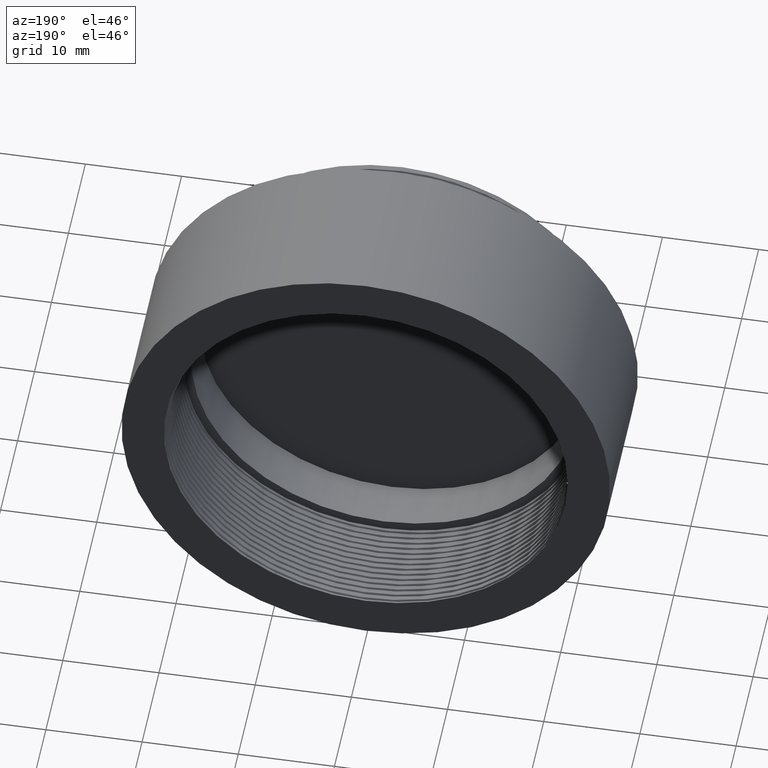
[diagram: clean part render]
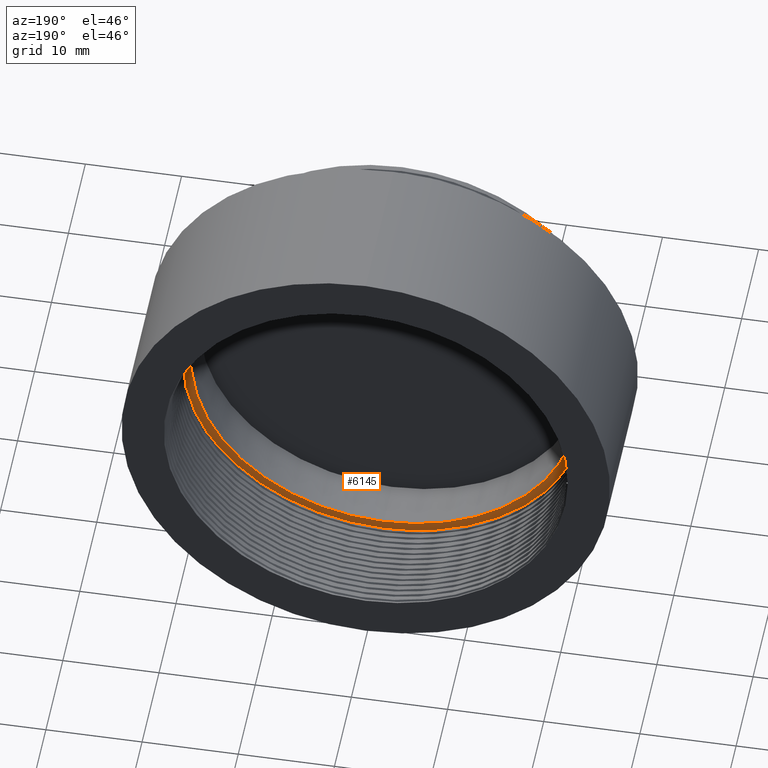
[diagram: same view with one face highlighted and labeled with its STEP entity id]
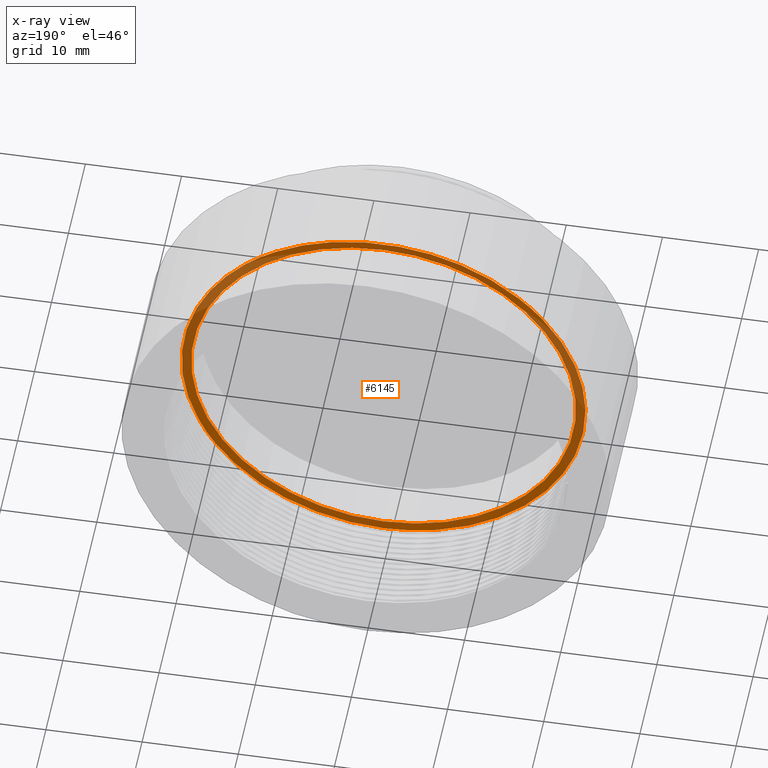
[diagram: x-ray of the same camera — body ghosted, the highlighted face saturated]
A machine part, auxiliary view. The second image highlights one B-rep face of the part: STEP entity #6145.
The next image is the same camera in x-ray: the body ghosted, the highlighted face saturated — about 34% of this face is hidden behind the body in this view.
In plain terms, the highlighted planar face has unit normal (0, 1, 0).
Its self-contained STEP definition (entity closure, byte-faithful):
#20 = CARTESIAN_POINT ( 'NONE',  ( -9.376612551712481647, 11.00000000000000000, -18.84141831381162291 ) ) ;
#89 = AXIS2_PLACEMENT_3D ( 'NONE', #3897, #1185, #1086 ) ;
#92 = CARTESIAN_POINT ( 'NONE',  ( -20.38579456893963027, 10.99999999999999822, -5.228698386210409943 ) ) ;
#141 = ORIENTED_EDGE ( 'NONE', *, *, #3516, .T. ) ;
#160 = CARTESIAN_POINT ( 'NONE',  ( -20.99832269904928950, 11.00070836982192901, 0.2658145037446087988 ) ) ;
#199 = CARTESIAN_POINT ( 'NONE',  ( 6.192182404824472464, 10.99999999999999467, 19.98000702472917212 ) ) ;
#447 = B_SPLINE_CURVE_WITH_KNOTS ( 'NONE', 3,
 ( #1478, #3658, #5842, #2048 ),
 .UNSPECIFIED., .F., .F.,
 ( 4, 4 ),
 ( 0.000000000000000000, 1.684665365120567622E-05 ),
 .UNSPECIFIED. ) ;
#479 = CARTESIAN_POINT ( 'NONE',  ( 20.76729372760701509, 10.99999999999999822, -3.752007884004494365 ) ) ;
#545 = AXIS2_PLACEMENT_3D ( 'NONE', #2359, #6654, #4506 ) ;
#555 = CARTESIAN_POINT ( 'NONE',  ( 3.394852015363649222, 11.00000000000000000, 20.61105757466285127 ) ) ;
#607 = CARTESIAN_POINT ( 'NONE',  ( -20.99832269904928950, 11.00070836982192901, 0.2658145037446087988 ) ) ;
#621 = CARTESIAN_POINT ( 'NONE',  ( -6.819739058362572770, 11.00000000000000178, -19.91007448998652407 ) ) ;
#656 = CARTESIAN_POINT ( 'NONE',  ( -1.385607094730699540, 11.00000000000000000, -20.99999999999999645 ) ) ;
#696 = CARTESIAN_POINT ( 'NONE',  ( -19.36648384478871066, 10.99999999999999645, 7.942265705567438161 ) ) ;
#728 = CARTESIAN_POINT ( 'NONE',  ( -16.47302115723470450, 11.00000000000000533, 12.82128820089616994 ) ) ;
#767 = CARTESIAN_POINT ( 'NONE',  ( -10.31634094374765631, 10.99999999999999467, 18.13012216713388725 ) ) ;
#867 = CARTESIAN_POINT ( 'NONE',  ( 0.000000000000000000, 11.00000000000000000, -21.00000000000000000 ) ) ;
#869 = CARTESIAN_POINT ( 'NONE',  ( -1.613268840247533253, 11.00000000000000000, 20.76557526982477242 ) ) ;
#1086 = DIRECTION ( 'NONE',  ( 0.000000000000000000, 0.000000000000000000, -1.000000000000000000 ) ) ;
#1146 = CARTESIAN_POINT ( 'NONE',  ( -19.99543596717254701, 11.00000000000000000, -6.565245426004308271 ) ) ;
#1179 = CARTESIAN_POINT ( 'NONE',  ( -21.01596431327338621, 10.99999999999999822, -1.117654241788260894 ) ) ;
#1185 = DIRECTION ( 'NONE',  ( -0.000000000000000000, -1.000000000000000000, -0.000000000000000000 ) ) ;
#1257 = CARTESIAN_POINT ( 'NONE',  ( -19.63465510455311858, 10.99999999999999822, 7.274993625966185817 ) ) ;
#1261 = EDGE_LOOP ( 'NONE', ( #1738, #6199, #1571, #141, #3054, #5595, #5036 ) ) ;
#1330 = CARTESIAN_POINT ( 'NONE',  ( -17.73983588307692116, 11.00000000000000533, 11.11007280043288681 ) ) ;
#1399 = CARTESIAN_POINT ( 'NONE',  ( 20.00000000000000000, 11.00000000000000000, 0.000000000000000000 ) ) ;
#1400 = CARTESIAN_POINT ( 'NONE',  ( -6.114496230715467107, 11.00000000000000178, 19.94345230860073315 ) ) ;
#1458 = CARTESIAN_POINT ( 'NONE',  ( 12.01932767772037991, 10.99999999999999822, 17.24386398497079043 ) ) ;
#1478 = CARTESIAN_POINT ( 'NONE',  ( 14.40284748030011563, 11.00001991105595955, 15.28262937648084296 ) ) ;
#1569 = CARTESIAN_POINT ( 'NONE',  ( 4.174915481830221431, 11.00000000000000000, -20.68642387291510687 ) ) ;
#1571 = ORIENTED_EDGE ( 'NONE', *, *, #5967, .T. ) ;
#1641 = CARTESIAN_POINT ( 'NONE',  ( -20.89606525793205094, 11.00000000000000178, -2.504868011934628047 ) ) ;
#1738 = ORIENTED_EDGE ( 'NONE', *, *, #3168, .F. ) ;
#1754 = CARTESIAN_POINT ( 'NONE',  ( -20.99832269904928950, 11.00070836982192901, 0.2658145037446087988 ) ) ;
#1784 = CARTESIAN_POINT ( 'NONE',  ( -18.31390474791255585, 11.00000000000000000, -10.36922368865452171 ) ) ;
#1789 = CARTESIAN_POINT ( 'NONE',  ( 14.40284748030011563, 11.00001991105595955, 15.28262937648084296 ) ) ;
#1905 = EDGE_LOOP ( 'NONE', ( #5095, #4046 ) ) ;
#1930 = CARTESIAN_POINT ( 'NONE',  ( -13.15658767194770995, 10.99999999999999645, 16.18744712874730496 ) ) ;
#2038 = FACE_BOUND ( 'NONE', #1905, .T. ) ;
#2048 = CARTESIAN_POINT ( 'NONE',  ( 14.39058597849862942, 10.99999604192153768, 15.29418325506679999 ) ) ;
#2070 = CARTESIAN_POINT ( 'NONE',  ( 20.04771357964002831, 11.00000000000000000, 6.591451445550842614 ) ) ;
#2116 = CARTESIAN_POINT ( 'NONE',  ( 14.24628486455015164, 11.00000000000000000, 15.42871583336450136 ) ) ;
#2137 = CARTESIAN_POINT ( 'NONE',  ( 15.07388673445577609, 11.00000000000000178, -14.76942756667081902 ) ) ;
#2170 = CARTESIAN_POINT ( 'NONE',  ( 20.28861758745346577, 11.00000000000000000, -5.807757598282807798 ) ) ;
#2180 = CARTESIAN_POINT ( 'NONE',  ( 4.104392977379085039, 11.00000000000000178, 20.48886645474529544 ) ) ;
#2235 = VERTEX_POINT ( 'NONE', #6120 ) ;
#2286 = CARTESIAN_POINT ( 'NONE',  ( -15.05293926870275811, 10.99999999999999822, 14.43265228422139224 ) ) ;
#2355 = CARTESIAN_POINT ( 'NONE',  ( 10.16245483518208026, 11.00000000000000000, 18.33280125925375259 ) ) ;
#2359 = CARTESIAN_POINT ( 'NONE',  ( 0.000000000000000000, 11.00000000000000000, 0.000000000000000000 ) ) ;
#2424 = CARTESIAN_POINT ( 'NONE',  ( 7.552805944567641205, 10.99999999999999467, 19.52196328696531324 ) ) ;
#2708 = CARTESIAN_POINT ( 'NONE',  ( 13.52312009790266600, 11.00000000000000000, -16.20133558531637519 ) ) ;
#2747 = CARTESIAN_POINT ( 'NONE',  ( -15.91714213487358620, 11.00000000000000000, -13.76824220004863619 ) ) ;
#2769 = EDGE_CURVE ( 'NONE', #6434, #6272, #447, .T. ) ;
#2825 = CARTESIAN_POINT ( 'NONE',  ( -18.46437755852599594, 10.99999999999999645, 9.891083325738192045 ) ) ;
#2858 = CARTESIAN_POINT ( 'NONE',  ( -14.54221375337176170, 11.00000000000000000, 14.93781033204386688 ) ) ;
#2954 =( BOUNDED_CURVE ( )  B_SPLINE_CURVE ( 2, ( #5448, #4395, #2116 ),
 .UNSPECIFIED., .F., .T. ) 
 B_SPLINE_CURVE_WITH_KNOTS ( ( 3, 3 ),
 ( 0.000000000000000000, 1.000000000000000000 ),
 .UNSPECIFIED. ) 
 CURVE ( )  GEOMETRIC_REPRESENTATION_ITEM ( )  RATIONAL_B_SPLINE_CURVE ( ( 0.9941606006061280976, 0.9933283622851699635, 0.9925176200128658088 ) ) 
 REPRESENTATION_ITEM ( '' )  );
#3005 = DIRECTION ( 'NONE',  ( 0.000000000000000000, 1.000000000000000000, 0.000000000000000000 ) ) ;
#3007 = CARTESIAN_POINT ( 'NONE',  ( -14.00612627953709932, 10.99999999999999822, 15.41558235290940537 ) ) ;
#3054 = ORIENTED_EDGE ( 'NONE', *, *, #6274, .F. ) ;
#3144 = CARTESIAN_POINT ( 'NONE',  ( 2.087594771582240938, 11.00000000000000355, -21.00000000000000000 ) ) ;
#3168 = EDGE_CURVE ( 'NONE', #3842, #6236, #4195, .T. ) ;
#3284 = CARTESIAN_POINT ( 'NONE',  ( 15.92206857099474249, 11.00000000000000000, 13.85084056477725234 ) ) ;
#3469 = CARTESIAN_POINT ( 'NONE',  ( -14.00612627953709932, 10.99999999999999822, 15.41558235290940537 ) ) ;
#3516 = EDGE_CURVE ( 'NONE', #5070, #5306, #5915, .T. ) ;
#3539 = FACE_OUTER_BOUND ( 'NONE', #1261, .T. ) ;
#3575 = CARTESIAN_POINT ( 'NONE',  ( -3.886754311612392598, 11.00000000000000000, 20.49442595102453524 ) ) ;
#3620 = B_SPLINE_CURVE_WITH_KNOTS ( 'NONE', 3,
 ( #1754, #3930, #3896, #4472, #5621, #1257, #696, #2825, #1330, #728, #5690, #2286, #2858, #3469 ),
 .UNSPECIFIED., .F., .F.,
 ( 4, 2, 2, 2, 2, 2, 4 ),
 ( 0.0002678161214734781255, 0.004575840829377345736, 0.006729853183329279759, 0.008883865537281212046, 0.01319189024518507836, 0.01534590259913700717, 0.01749991495308894293 ),
 .UNSPECIFIED. ) ;
#3658 = CARTESIAN_POINT ( 'NONE',  ( 14.39878792846167954, 11.00000000000000000, 15.28651050415860979 ) ) ;
#3678 = CARTESIAN_POINT ( 'NONE',  ( 8.165806740627470361, 11.00000000000000000, -19.45964162581265100 ) ) ;
#3817 = CARTESIAN_POINT ( 'NONE',  ( -5.488279480270566779, 11.00000000000000000, -20.31744805253379127 ) ) ;
#3842 = VERTEX_POINT ( 'NONE', #607 ) ;
#3853 = CARTESIAN_POINT ( 'NONE',  ( -13.97013419206014717, 11.00000000000000178, -15.74024325341892272 ) ) ;
#3896 = CARTESIAN_POINT ( 'NONE',  ( -20.78396000848695380, 10.99999999999999645, 3.134526554425440814 ) ) ;
#3897 = CARTESIAN_POINT ( 'NONE',  ( 0.000000000000000000, 11.00000000000000000, 0.000000000000000000 ) ) ;
#3930 = CARTESIAN_POINT ( 'NONE',  ( -20.96399923641366314, 11.00000000000000178, 1.703454236785207909 ) ) ;
#3999 = CARTESIAN_POINT ( 'NONE',  ( 9.524156918441262221, 11.00000000000000711, 18.66418720205083304 ) ) ;
#4046 = ORIENTED_EDGE ( 'NONE', *, *, #6405, .T. ) ;
#4063 = B_SPLINE_CURVE_WITH_KNOTS ( 'NONE', 3,
 ( #6829, #1930, #5160, #767, #6792, #4109, #1400, #3575, #5762, #869 ),
 .UNSPECIFIED., .F., .F.,
 ( 4, 2, 2, 2, 4 ),
 ( 0.000000000000000000, 0.003443435419747900399, 0.006886870839495800797, 0.01033030625924370553, 0.01377374167899160853 ),
 .UNSPECIFIED. ) ;
#4109 = CARTESIAN_POINT ( 'NONE',  ( -7.199303493054311609, 10.99999999999999822, 19.57801150136263502 ) ) ;
#4182 = CARTESIAN_POINT ( 'NONE',  ( 14.39058597849862942, 10.99999604192153768, 15.29418325506679999 ) ) ;
#4195 = B_SPLINE_CURVE_WITH_KNOTS ( 'NONE', 3,
 ( #160, #1179, #1641, #92, #1146, #6681, #1784, #6542, #2747, #3853, #6039, #5507, #20, #621, #3817, #6007, #656, #4429 ),
 .UNSPECIFIED., .F., .F.,
 ( 4, 2, 2, 2, 2, 2, 2, 2, 4 ),
 ( 0.7479700362176113781, 0.7794737816904099281, 0.8109775271632084781, 0.8424812726360071391, 0.8739850181088056891, 0.9054887635816042391, 0.9369925090544029000, 0.9684962545272014500, 1.000000000000000000 ),
 .UNSPECIFIED. ) ;
#4216 = PLANE ( 'NONE',  #6004 ) ;
#4314 = CARTESIAN_POINT ( 'NONE',  ( 18.74815826540139696, 11.00000000000000000, -9.688375177799365190 ) ) ;
#4348 = CARTESIAN_POINT ( 'NONE',  ( 21.09952604286482725, 11.00000000000000178, 0.4099423091199344560 ) ) ;
#4395 = CARTESIAN_POINT ( 'NONE',  ( 14.31688644162604973, 10.99942088953080876, 15.36346329701057556 ) ) ;
#4429 = CARTESIAN_POINT ( 'NONE',  ( 0.000000000000000000, 11.00000000000000000, -21.00000000000000000 ) ) ;
#4462 = B_SPLINE_CURVE_WITH_KNOTS ( 'NONE', 3,
 ( #4825, #3144, #1569, #3678, #4896, #2708, #2137, #6931, #4314, #2170, #479, #4348, #6969, #2070, #7035, #7003, #3284, #5938 ),
 .UNSPECIFIED., .F., .F.,
 ( 4, 2, 2, 2, 2, 2, 2, 2, 4 ),
 ( 0.000000000000000000, 0.04746443243858705641, 0.09492886487717414057, 0.1423932973157611970, 0.1898577297543483089, 0.2373221621929354763, 0.2847865946315225605, 0.3322510270701097279, 0.3797154595086968953 ),
 .UNSPECIFIED. ) ;
#4472 = CARTESIAN_POINT ( 'NONE',  ( -20.29767296973525603, 10.99999999999999822, 5.230692291209580347 ) ) ;
#4503 = CARTESIAN_POINT ( 'NONE',  ( 14.24628486455015164, 11.00000000000000000, 15.42871583336450136 ) ) ;
#4506 = DIRECTION ( 'NONE',  ( 0.000000000000000000, 0.000000000000000000, -1.000000000000000000 ) ) ;
#4612 = VERTEX_POINT ( 'NONE', #6560 ) ;
#4645 = CIRCLE ( 'NONE', #545, 20.00000000000000000 ) ;
#4825 = CARTESIAN_POINT ( 'NONE',  ( 0.000000000000000000, 11.00000000000000000, -21.00000000000000000 ) ) ;
#4896 = CARTESIAN_POINT ( 'NONE',  ( 10.06885336135407627, 11.00000000000000000, -18.54659655888072223 ) ) ;
#5015 = CARTESIAN_POINT ( 'NONE',  ( -1.613268840247533253, 11.00000000000000000, 20.76557526982477242 ) ) ;
#5036 = ORIENTED_EDGE ( 'NONE', *, *, #5096, .F. ) ;
#5070 = VERTEX_POINT ( 'NONE', #6400 ) ;
#5095 = ORIENTED_EDGE ( 'NONE', *, *, #5743, .T. ) ;
#5096 = EDGE_CURVE ( 'NONE', #6236, #6434, #4462, .T. ) ;
#5153 = CARTESIAN_POINT ( 'NONE',  ( 5.502481014232166956, 10.99999999999999822, 20.17331616469580169 ) ) ;
#5160 = CARTESIAN_POINT ( 'NONE',  ( -12.24536653426703126, 10.99999999999999645, 16.88725018184716120 ) ) ;
#5193 = DIRECTION ( 'NONE',  ( 0.000000000000000000, -0.000000000000000000, 1.000000000000000000 ) ) ;
#5306 = VERTEX_POINT ( 'NONE', #5570 ) ;
#5438 = CIRCLE ( 'NONE', #89, 20.00000000000000000 ) ;
#5443 = CARTESIAN_POINT ( 'NONE',  ( 1.260910388894639134, 11.00000000000000355, 20.86648301610033585 ) ) ;
#5448 = CARTESIAN_POINT ( 'NONE',  ( 14.39058597849862942, 10.99999604192153768, 15.29418325506679999 ) ) ;
#5507 = CARTESIAN_POINT ( 'NONE',  ( -10.60196116657311016, 11.00000000000000178, -18.18016299276339964 ) ) ;
#5570 = CARTESIAN_POINT ( 'NONE',  ( 14.24628486455015164, 11.00000000000000000, 15.42871583336450136 ) ) ;
#5595 = ORIENTED_EDGE ( 'NONE', *, *, #2769, .F. ) ;
#5621 = CARTESIAN_POINT ( 'NONE',  ( -20.09953791030565995, 10.99999999999999645, 5.921113250356113689 ) ) ;
#5690 = CARTESIAN_POINT ( 'NONE',  ( -16.02051710516896321, 11.00000000000000000, 13.37199731747878317 ) ) ;
#5743 = EDGE_CURVE ( 'NONE', #2235, #4612, #5438, .T. ) ;
#5762 = CARTESIAN_POINT ( 'NONE',  ( -2.757640651617359939, 11.00000000000000533, 20.67666950338432486 ) ) ;
#5842 = CARTESIAN_POINT ( 'NONE',  ( 14.39466352191652199, 11.00000000000000178, 15.29032150092358577 ) ) ;
#5883 = VERTEX_POINT ( 'NONE', #3007 ) ;
#5915 = B_SPLINE_CURVE_WITH_KNOTS ( 'NONE', 3,
 ( #5015, #7049, #5443, #555, #2180, #5153, #199, #2424, #6785, #3999, #2355, #1458, #6222, #4503 ),
 .UNSPECIFIED., .F., .F.,
 ( 4, 2, 2, 2, 2, 2, 4 ),
 ( 0.000000000000000000, 0.004311036933413103615, 0.006466555400119654989, 0.008622073866826207231, 0.01077759233353275947, 0.01293311080023930998, 0.01724414773365242140 ),
 .UNSPECIFIED. ) ;
#5938 = CARTESIAN_POINT ( 'NONE',  ( 14.40284748030011563, 11.00001991105595955, 15.28262937648084296 ) ) ;
#5967 = EDGE_CURVE ( 'NONE', #5883, #5070, #4063, .T. ) ;
#6004 = AXIS2_PLACEMENT_3D ( 'NONE', #1399, #3005, #5193 ) ;
#6007 = CARTESIAN_POINT ( 'NONE',  ( -2.771178802222261428, 11.00000000000000178, -20.86241776657446678 ) ) ;
#6039 = CARTESIAN_POINT ( 'NONE',  ( -12.89875131579070633, 11.00000000000000000, -16.62955566196390222 ) ) ;
#6120 = CARTESIAN_POINT ( 'NONE',  ( 0.000000000000000000, 11.00000000000000000, -20.00000000000000000 ) ) ;
#6145 = ADVANCED_FACE ( 'NONE', ( #2038, #3539 ), #4216, .T. ) ;
#6199 = ORIENTED_EDGE ( 'NONE', *, *, #6492, .T. ) ;
#6222 = CARTESIAN_POINT ( 'NONE',  ( 13.18310553576288058, 11.00000000000000533, 16.38961746869055958 ) ) ;
#6236 = VERTEX_POINT ( 'NONE', #867 ) ;
#6272 = VERTEX_POINT ( 'NONE', #4182 ) ;
#6274 = EDGE_CURVE ( 'NONE', #6272, #5306, #2954, .T. ) ;
#6400 = CARTESIAN_POINT ( 'NONE',  ( -1.613268840247533253, 11.00000000000000000, 20.76557526982477242 ) ) ;
#6405 = EDGE_CURVE ( 'NONE', #4612, #2235, #4645, .T. ) ;
#6434 = VERTEX_POINT ( 'NONE', #1789 ) ;
#6492 = EDGE_CURVE ( 'NONE', #3842, #5883, #3620, .T. ) ;
#6542 = CARTESIAN_POINT ( 'NONE',  ( -16.79271747647323210, 11.00000000000000178, -12.68560391847067059 ) ) ;
#6560 = CARTESIAN_POINT ( 'NONE',  ( 2.449293598294706513E-15, 11.00000000000000000, 20.00000000000000000 ) ) ;
#6654 = DIRECTION ( 'NONE',  ( -0.000000000000000000, -1.000000000000000000, -0.000000000000000000 ) ) ;
#6681 = CARTESIAN_POINT ( 'NONE',  ( -18.95947782790947755, 11.00000000000000178, -9.135540898818033995 ) ) ;
#6785 = CARTESIAN_POINT ( 'NONE',  ( 8.220665631546646424, 11.00000000000000355, 19.25811378348032576 ) ) ;
#6792 = CARTESIAN_POINT ( 'NONE',  ( -9.306451029547940124, 10.99999999999999645, 18.66864950571459403 ) ) ;
#6829 = CARTESIAN_POINT ( 'NONE',  ( -14.00612627953709932, 10.99999999999999822, 15.41558235290940537 ) ) ;
#6931 = CARTESIAN_POINT ( 'NONE',  ( 17.68657731639929409, 10.99999999999999822, -11.51273359204353142 ) ) ;
#6969 = CARTESIAN_POINT ( 'NONE',  ( 20.95303860220952075, 11.00000000000000178, 2.515596403371399337 ) ) ;
#7003 = CARTESIAN_POINT ( 'NONE',  ( 17.22603693180004925, 10.99999999999999822, 12.19105014158329681 ) ) ;
#7035 = CARTESIAN_POINT ( 'NONE',  ( 19.28899484961558741, 11.00000000000000000, 8.561117311533644525 ) ) ;
#7049 = CARTESIAN_POINT ( 'NONE',  ( -0.1816449117015201120, 11.00000000000000178, 20.89075623134657533 ) ) ;